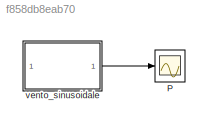
MODEL slx_f858db8eab70
KIND model
CONFIG AbsTol = auto
CONFIG EnableMultiTasking = off
CONFIG FixedStep = auto
CONFIG MaxStep = auto
CONFIG MinStep = auto
CONFIG RelTol = 1e-3
CONFIG SampleTimeConstraint = Unconstrained
CONFIG SolverName = VariableStepAuto
CONFIG StartTime = 0.0
CONFIG StopTime = 3600
BLOCK [Scope] P
  Floating = off
  NumInputPorts = 1
  ScopeSpecificationString = Simulink.scopes.TimeScopeBlockCfg('CurrentConfiguration', extmgr.ConfigurationSet(extmgr.Configuration('Core','General UI',true),extmgr.Configuration('Core','Source UI',true),extmgr.Configuration('Sources','WiredSimulink',true),extmgr.Configuration('Visuals','Time Domain',true,'SerializedDisplays',{struct('MinYLimReal','-1.875','MaxYLimReal','16.875','YLabelReal','','MinYLimMag','0.00000','MaxYLim...<+1789ch>
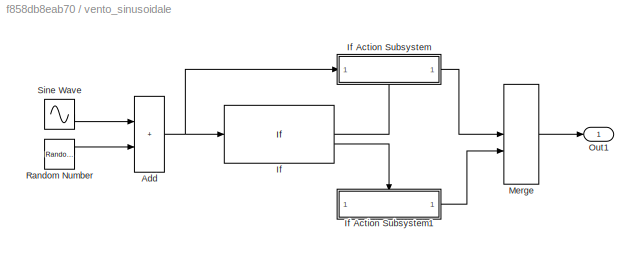
BLOCK [SubSystem] vento_sinusoidale
BLOCK [Sum] vento_sinusoidale/Add
  IconShape = rectangular
BLOCK [If] vento_sinusoidale/If
  IfExpression = u1 > 2 & u1 <15
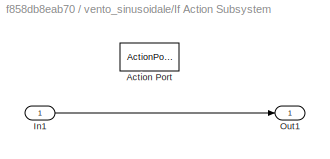
BLOCK [SubSystem] vento_sinusoidale/If Action Subsystem
  NameLocation = top
  TreatAsAtomicUnit = on
BLOCK [ActionPort] vento_sinusoidale/If Action Subsystem/Action Port
  ActionPortLabel = if(u1 > 2 & u1 <15)
BLOCK [Inport] vento_sinusoidale/If Action Subsystem/In1
BLOCK [Outport] vento_sinusoidale/If Action Subsystem/Out1
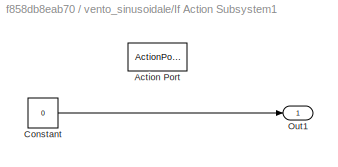
BLOCK [SubSystem] vento_sinusoidale/If Action Subsystem1
  TreatAsAtomicUnit = on
BLOCK [ActionPort] vento_sinusoidale/If Action Subsystem1/Action Port
  ActionPortLabel = else
BLOCK [Constant] vento_sinusoidale/If Action Subsystem1/Constant
  Value = 0
BLOCK [Outport] vento_sinusoidale/If Action Subsystem1/Out1
BLOCK [Merge] vento_sinusoidale/Merge
BLOCK [Outport] vento_sinusoidale/Out1
BLOCK [RandomNumber] vento_sinusoidale/Random Number
  NameLocation = left
  SampleTime = 1
  Variance = 2
BLOCK [Sin] vento_sinusoidale/Sine Wave
  Amplitude = 5.5
  Bias = 8.5
  Frequency = 2*pi/90
  NameLocation = left
  SampleTime = 0
NET vento_sinusoidale/Add:1 -> vento_sinusoidale/If Action Subsystem:1, vento_sinusoidale/If:1
LINE vento_sinusoidale/If Action Subsystem/In1:1 -> vento_sinusoidale/If Action Subsystem/Out1:1
LINE vento_sinusoidale/If Action Subsystem1/Constant:1 -> vento_sinusoidale/If Action Subsystem1/Out1:1
LINE vento_sinusoidale/If Action Subsystem1:1 -> vento_sinusoidale/Merge:2
LINE vento_sinusoidale/If Action Subsystem:1 -> vento_sinusoidale/Merge:1
LINE vento_sinusoidale/If:1 -> vento_sinusoidale/If Action Subsystem:ifaction
LINE vento_sinusoidale/If:2 -> vento_sinusoidale/If Action Subsystem1:ifaction
LINE vento_sinusoidale/Merge:1 -> vento_sinusoidale/Out1:1
LINE vento_sinusoidale/Random Number:1 -> vento_sinusoidale/Add:2
LINE vento_sinusoidale/Sine Wave:1 -> vento_sinusoidale/Add:1
LINE vento_sinusoidale:1 -> P:1
note: NET lines group one-source signal fan-out (src -> all destinations, sorted); 1:1 wires keep LINE
